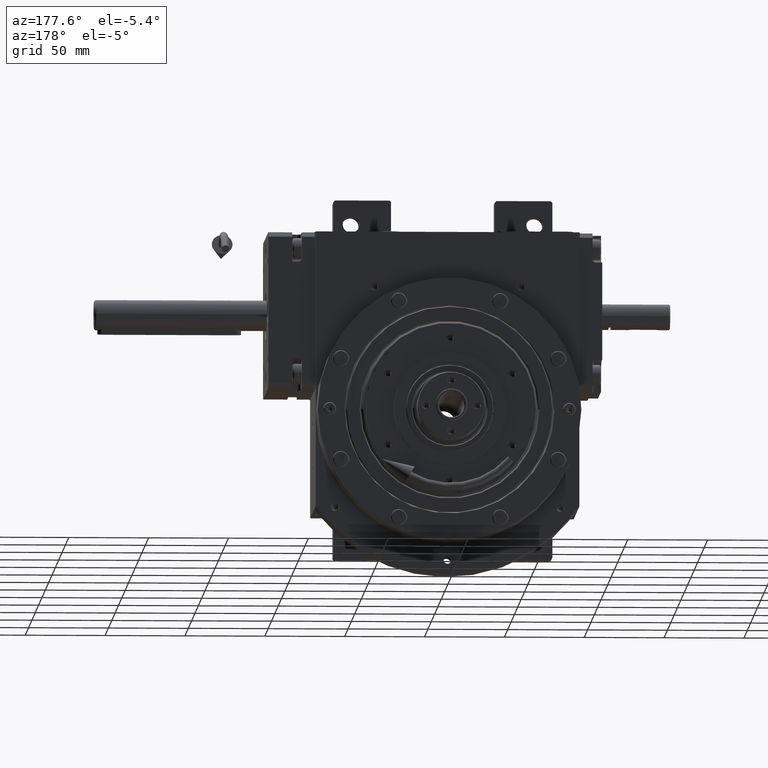
[diagram: clean part render]
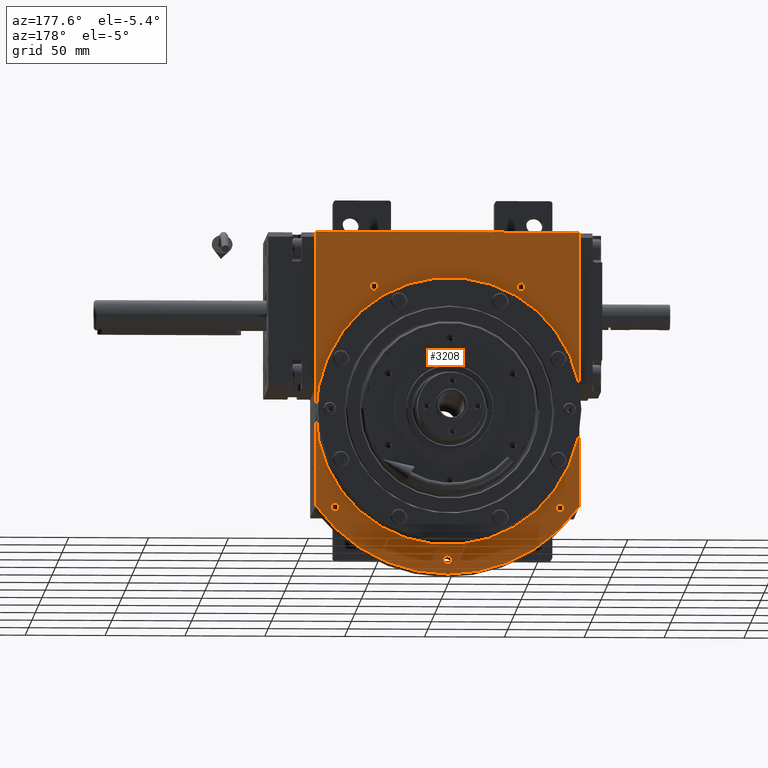
[diagram: same view with one face highlighted and labeled with its STEP entity id]
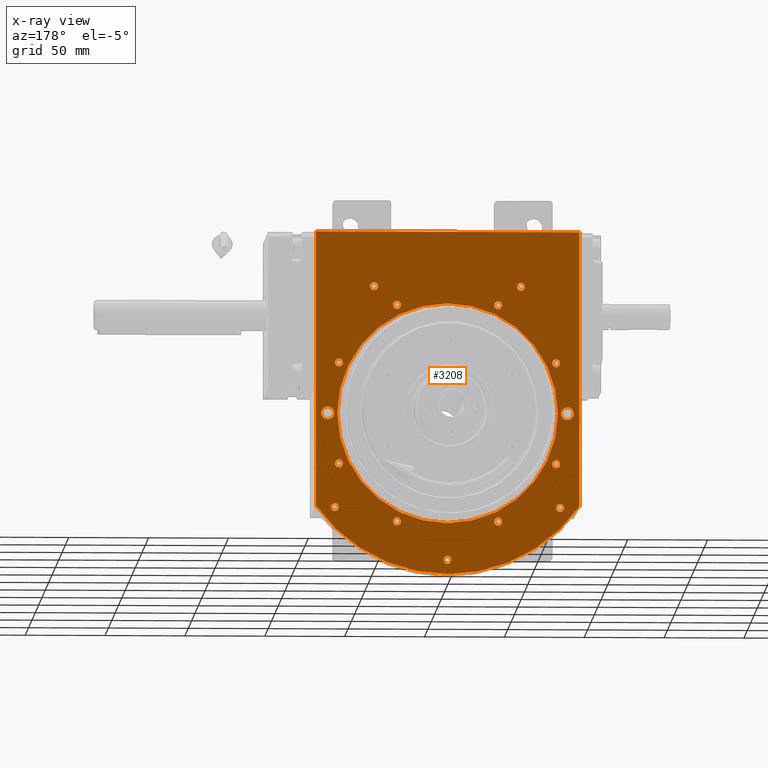
[diagram: x-ray of the same camera — body ghosted, the highlighted face saturated]
A machine part, auxiliary view. The second image highlights one B-rep face of the part: STEP entity #3208.
The next image is the same camera in x-ray: the body ghosted, the highlighted face saturated — about 0% of this face is hidden behind the body in this view.
In plain terms, the highlighted planar face has unit normal (0, 1, 0).
Its self-contained STEP definition (entity closure, byte-faithful):
#107 = LINE ( 'NONE', #52809, #14744 ) ;
#132 = CIRCLE ( 'NONE', #56200, 4.000000000000006217 ) ;
#306 = CARTESIAN_POINT ( 'NONE',  ( -70.47608876694599189, 44.50000000000000000, -59.13646009116160229 ) ) ;
#595 = FACE_BOUND ( 'NONE', #13395, .T. ) ;
#718 = DIRECTION ( 'NONE',  ( 0.000000000000000000, 1.000000000000000000, 0.000000000000000000 ) ) ;
#781 = EDGE_CURVE ( 'NONE', #11074, #19322, #132, .T. ) ;
#812 = CARTESIAN_POINT ( 'NONE',  ( 70.47608876694599189, 44.50000000000000000, -59.13646009116160229 ) ) ;
#828 = DIRECTION ( 'NONE',  ( -0.000000000000000000, -1.000000000000000000, -0.000000000000000000 ) ) ;
#893 = CIRCLE ( 'NONE', #40121, 2.500000000000000000 ) ;
#998 = CIRCLE ( 'NONE', #9964, 2.500000000000002220 ) ;
#1527 = CIRCLE ( 'NONE', #26192, 2.500000000000002220 ) ;
#1593 = DIRECTION ( 'NONE',  ( -0.000000000000000000, -1.000000000000000000, -0.000000000000000000 ) ) ;
#2049 = CIRCLE ( 'NONE', #52471, 4.000000000000006217 ) ;
#2552 = VERTEX_POINT ( 'NONE', #21928 ) ;
#2632 = EDGE_CURVE ( 'NONE', #10119, #39839, #30431, .T. ) ;
#2748 = VECTOR ( 'NONE', #33037, 1000.000000000000000 ) ;
#2776 = AXIS2_PLACEMENT_3D ( 'NONE', #12699, #44997, #55202 ) ;
#3024 = ORIENTED_EDGE ( 'NONE', *, *, #57660, .F. ) ;
#3208 = ADVANCED_FACE ( 'NONE', ( #64190, #53996, #9729, #16398, #26253, #595, #52609, #11142, #42019, #41677, #5160, #16061, #63155, #10438, #26578, #47993, #15030 ), #47331, .T. ) ;
#3346 = CIRCLE ( 'NONE', #50497, 2.500000000000002220 ) ;
#3422 = EDGE_CURVE ( 'NONE', #7065, #7287, #65132, .T. ) ;
#4454 = DIRECTION ( 'NONE',  ( 0.000000000000000000, 1.000000000000000000, 0.000000000000000000 ) ) ;
#4604 = CARTESIAN_POINT ( 'NONE',  ( 72.97608876694600610, 44.50000000000000000, -59.13646009116160229 ) ) ;
#4619 = ORIENTED_EDGE ( 'NONE', *, *, #8095, .F. ) ;
#4636 = CARTESIAN_POINT ( 'NONE',  ( 65.47308402774879710, 44.50000000000000000, -31.69636963055249979 ) ) ;
#4740 = CIRCLE ( 'NONE', #27208, 2.500000000000002220 ) ;
#4886 = AXIS2_PLACEMENT_3D ( 'NONE', #60005, #28373, #42495 ) ;
#4897 = CARTESIAN_POINT ( 'NONE',  ( -70.47308402774881131, 44.50000000000000000, 31.69636963055245360 ) ) ;
#5008 = DIRECTION ( 'NONE',  ( 1.000000000000000000, 0.000000000000000000, 0.000000000000000000 ) ) ;
#5160 = FACE_BOUND ( 'NONE', #50845, .T. ) ;
#5360 = CARTESIAN_POINT ( 'NONE',  ( 65.47308402774879710, 44.50000000000000000, 31.69636963055249979 ) ) ;
#5796 = DIRECTION ( 'NONE',  ( -1.000000000000000000, 0.000000000000000000, 0.000000000000000000 ) ) ;
#5998 = CARTESIAN_POINT ( 'NONE',  ( 70.47608876694599189, 44.50000000000000000, -59.13646009116160229 ) ) ;
#6116 = ORIENTED_EDGE ( 'NONE', *, *, #35644, .F. ) ;
#7065 = VERTEX_POINT ( 'NONE', #33998 ) ;
#7183 = EDGE_CURVE ( 'NONE', #22458, #2552, #1527, .T. ) ;
#7193 = EDGE_CURVE ( 'NONE', #17111, #33852, #11596, .T. ) ;
#7287 = VERTEX_POINT ( 'NONE', #10055 ) ;
#7387 = EDGE_CURVE ( 'NONE', #24071, #38168, #68875, .T. ) ;
#7714 = VECTOR ( 'NONE', #55056, 1000.000000000000000 ) ;
#7752 = DIRECTION ( 'NONE',  ( 0.000000000000000000, 0.000000000000000000, 1.000000000000000000 ) ) ;
#8031 = ORIENTED_EDGE ( 'NONE', *, *, #7193, .F. ) ;
#8095 = EDGE_CURVE ( 'NONE', #61151, #23638, #51049, .T. ) ;
#8286 = DIRECTION ( 'NONE',  ( 0.000000000000000000, 1.000000000000000000, 0.000000000000000000 ) ) ;
#8556 = CARTESIAN_POINT ( 'NONE',  ( -67.97308402774881131, 44.50000000000000000, -31.69636963055245360 ) ) ;
#8769 = CARTESIAN_POINT ( 'NONE',  ( -34.19636963055249623, 44.50000000000000000, -67.97308402774881131 ) ) ;
#8777 = DIRECTION ( 'NONE',  ( 0.000000000000000000, 1.000000000000000000, 0.000000000000000000 ) ) ;
#8914 = EDGE_CURVE ( 'NONE', #20723, #28476, #16687, .T. ) ;
#9296 = ORIENTED_EDGE ( 'NONE', *, *, #35007, .F. ) ;
#9483 = DIRECTION ( 'NONE',  ( -1.000000000000000000, 0.000000000000000000, -2.775557561562888984E-15 ) ) ;
#9729 = FACE_BOUND ( 'NONE', #21496, .T. ) ;
#9964 = AXIS2_PLACEMENT_3D ( 'NONE', #66421, #33034, #54461 ) ;
#10006 = CARTESIAN_POINT ( 'NONE',  ( -67.97308402774881131, 44.50000000000000000, -31.69636963055245360 ) ) ;
#10055 = CARTESIAN_POINT ( 'NONE',  ( -70.47308402774881131, 44.50000000000000000, -31.69636963055245360 ) ) ;
#10119 = VERTEX_POINT ( 'NONE', #4636 ) ;
#10413 = CARTESIAN_POINT ( 'NONE',  ( -75.00000000000000000, 44.50000000000000000, 4.000000000000006217 ) ) ;
#10438 = FACE_BOUND ( 'NONE', #62173, .T. ) ;
#10547 = CIRCLE ( 'NONE', #12852, 2.500000000000000000 ) ;
#11074 = VERTEX_POINT ( 'NONE', #10413 ) ;
#11142 = FACE_BOUND ( 'NONE', #25388, .T. ) ;
#11301 = CARTESIAN_POINT ( 'NONE',  ( -31.69636963055249979, 44.50000000000000000, -67.97308402774881131 ) ) ;
#11404 = CARTESIAN_POINT ( 'NONE',  ( 67.97308402774871183, 44.50000000000000000, -31.69636963055249979 ) ) ;
#11596 = CIRCLE ( 'NONE', #23944, 2.499999999999998668 ) ;
#11652 = ORIENTED_EDGE ( 'NONE', *, *, #55230, .F. ) ;
#12134 = DIRECTION ( 'NONE',  ( 1.000000000000000000, 0.000000000000000000, 0.000000000000000000 ) ) ;
#12264 = CIRCLE ( 'NONE', #51520, 2.500000000000002220 ) ;
#12345 = ORIENTED_EDGE ( 'NONE', *, *, #13297, .F. ) ;
#12452 = EDGE_CURVE ( 'NONE', #20446, #15559, #10547, .T. ) ;
#12699 = CARTESIAN_POINT ( 'NONE',  ( -46.00000000000000000, 44.50000000000000000, 79.67433714816840507 ) ) ;
#12852 = AXIS2_PLACEMENT_3D ( 'NONE', #36729, #33211, #27613 ) ;
#13184 = DIRECTION ( 'NONE',  ( 0.000000000000000000, 1.000000000000000000, 0.000000000000000000 ) ) ;
#13297 = EDGE_CURVE ( 'NONE', #35786, #21602, #44266, .T. ) ;
#13395 = EDGE_LOOP ( 'NONE', ( #25767, #12345 ) ) ;
#13449 = DIRECTION ( 'NONE',  ( 0.000000000000000000, 1.000000000000000000, 0.000000000000000000 ) ) ;
#13490 = AXIS2_PLACEMENT_3D ( 'NONE', #11301, #64002, #38312 ) ;
#13780 = ORIENTED_EDGE ( 'NONE', *, *, #38728, .F. ) ;
#13839 = ORIENTED_EDGE ( 'NONE', *, *, #17022, .T. ) ;
#14251 = CARTESIAN_POINT ( 'NONE',  ( -2.500000000000000000, 44.50000000000000000, -92.00000000000000000 ) ) ;
#14264 = EDGE_CURVE ( 'NONE', #66886, #48395, #30938, .T. ) ;
#14387 = CIRCLE ( 'NONE', #17735, 2.499999999999998668 ) ;
#14744 = VECTOR ( 'NONE', #47841, 1000.000000000000000 ) ;
#15030 = FACE_OUTER_BOUND ( 'NONE', #49597, .T. ) ;
#15237 = CIRCLE ( 'NONE', #19710, 101.0000000000000568 ) ;
#15321 = DIRECTION ( 'NONE',  ( -1.000000000000000000, 0.000000000000000000, 0.000000000000000000 ) ) ;
#15341 = VERTEX_POINT ( 'NONE', #61030 ) ;
#15464 = ORIENTED_EDGE ( 'NONE', *, *, #14264, .F. ) ;
#15559 = VERTEX_POINT ( 'NONE', #14251 ) ;
#15585 = ORIENTED_EDGE ( 'NONE', *, *, #8914, .F. ) ;
#15984 = VERTEX_POINT ( 'NONE', #68562 ) ;
#15986 = CARTESIAN_POINT ( 'NONE',  ( -67.97608876694600610, 44.50000000000000000, -59.13646009116160229 ) ) ;
#16061 = FACE_BOUND ( 'NONE', #51043, .T. ) ;
#16398 = FACE_BOUND ( 'NONE', #19413, .T. ) ;
#16644 = CARTESIAN_POINT ( 'NONE',  ( -48.50000000000000000, 44.50000000000000000, 79.67433714816840507 ) ) ;
#16687 = CIRCLE ( 'NONE', #67156, 2.500000000000002220 ) ;
#16827 = CIRCLE ( 'NONE', #28060, 2.500000000000002220 ) ;
#17017 = ORIENTED_EDGE ( 'NONE', *, *, #7183, .F. ) ;
#17022 = EDGE_CURVE ( 'NONE', #35827, #23552, #67725, .T. ) ;
#17071 = VERTEX_POINT ( 'NONE', #29323 ) ;
#17111 = VERTEX_POINT ( 'NONE', #38771 ) ;
#17633 = VERTEX_POINT ( 'NONE', #5360 ) ;
#17735 = AXIS2_PLACEMENT_3D ( 'NONE', #68718, #20572, #69391 ) ;
#17940 = CIRCLE ( 'NONE', #22446, 2.500000000000002220 ) ;
#17988 = ORIENTED_EDGE ( 'NONE', *, *, #39709, .F. ) ;
#17989 = DIRECTION ( 'NONE',  ( 0.000000000000000000, 0.000000000000000000, -1.000000000000000000 ) ) ;
#18022 = ORIENTED_EDGE ( 'NONE', *, *, #51965, .F. ) ;
#18184 = AXIS2_PLACEMENT_3D ( 'NONE', #50623, #45308, #24235 ) ;
#19322 = VERTEX_POINT ( 'NONE', #38957 ) ;
#19413 = EDGE_LOOP ( 'NONE', ( #52403, #20110 ) ) ;
#19593 = EDGE_CURVE ( 'NONE', #48395, #66886, #45747, .T. ) ;
#19710 = AXIS2_PLACEMENT_3D ( 'NONE', #67120, #62879, #35133 ) ;
#19845 = CARTESIAN_POINT ( 'NONE',  ( 67.97308402774881131, 44.50000000000000000, 31.69636963055249979 ) ) ;
#19962 = EDGE_CURVE ( 'NONE', #15559, #20446, #893, .T. ) ;
#19988 = AXIS2_PLACEMENT_3D ( 'NONE', #306, #60343, #33639 ) ;
#20110 = ORIENTED_EDGE ( 'NONE', *, *, #12452, .F. ) ;
#20446 = VERTEX_POINT ( 'NONE', #48241 ) ;
#20572 = DIRECTION ( 'NONE',  ( 0.000000000000000000, 1.000000000000000000, 0.000000000000000000 ) ) ;
#20723 = VERTEX_POINT ( 'NONE', #28223 ) ;
#20952 = ORIENTED_EDGE ( 'NONE', *, *, #37803, .F. ) ;
#21103 = CARTESIAN_POINT ( 'NONE',  ( 75.00000000000000000, 44.50000000000000000, 4.000000000000006217 ) ) ;
#21496 = EDGE_LOOP ( 'NONE', ( #18022, #30659 ) ) ;
#21602 = VERTEX_POINT ( 'NONE', #16644 ) ;
#21928 = CARTESIAN_POINT ( 'NONE',  ( -65.47308402774879710, 44.50000000000000000, 31.69636963055245360 ) ) ;
#22125 = DIRECTION ( 'NONE',  ( -1.000000000000000000, 0.000000000000000000, 0.000000000000000000 ) ) ;
#22271 = DIRECTION ( 'NONE',  ( 0.000000000000000000, 1.000000000000000000, 0.000000000000000000 ) ) ;
#22446 = AXIS2_PLACEMENT_3D ( 'NONE', #11404, #22271, #48622 ) ;
#22458 = VERTEX_POINT ( 'NONE', #4897 ) ;
#22488 = CARTESIAN_POINT ( 'NONE',  ( -82.50000000000000000, 44.50000000000000000, -58.26448317800490173 ) ) ;
#23253 = ORIENTED_EDGE ( 'NONE', *, *, #36946, .F. ) ;
#23552 = VERTEX_POINT ( 'NONE', #25314 ) ;
#23638 = VERTEX_POINT ( 'NONE', #37214 ) ;
#23944 = AXIS2_PLACEMENT_3D ( 'NONE', #45547, #62776, #52226 ) ;
#24071 = VERTEX_POINT ( 'NONE', #40660 ) ;
#24235 = DIRECTION ( 'NONE',  ( -1.000000000000000000, 0.000000000000000000, 0.000000000000000000 ) ) ;
#24703 = EDGE_CURVE ( 'NONE', #23638, #61151, #14387, .T. ) ;
#24937 = DIRECTION ( 'NONE',  ( 0.000000000000000000, 1.000000000000000000, 0.000000000000000000 ) ) ;
#25194 = DIRECTION ( 'NONE',  ( 0.000000000000000000, 1.000000000000000000, 0.000000000000000000 ) ) ;
#25314 = CARTESIAN_POINT ( 'NONE',  ( 0.000000000000000000, 44.50000000000000000, 69.00000000000000000 ) ) ;
#25388 = EDGE_LOOP ( 'NONE', ( #50423, #15464 ) ) ;
#25653 = EDGE_CURVE ( 'NONE', #19322, #11074, #32442, .T. ) ;
#25729 = CARTESIAN_POINT ( 'NONE',  ( -75.00000000000000000, 44.50000000000000000, 0.000000000000000000 ) ) ;
#25767 = ORIENTED_EDGE ( 'NONE', *, *, #31962, .F. ) ;
#25775 = DIRECTION ( 'NONE',  ( -1.000000000000000000, 0.000000000000000000, -2.775557561562888984E-15 ) ) ;
#25984 = EDGE_CURVE ( 'NONE', #57145, #17633, #38093, .T. ) ;
#26192 = AXIS2_PLACEMENT_3D ( 'NONE', #67013, #25194, #68054 ) ;
#26253 = FACE_BOUND ( 'NONE', #28122, .T. ) ;
#26578 = FACE_BOUND ( 'NONE', #48592, .T. ) ;
#26830 = ORIENTED_EDGE ( 'NONE', *, *, #7387, .F. ) ;
#27208 = AXIS2_PLACEMENT_3D ( 'NONE', #49736, #13184, #12134 ) ;
#27569 = DIRECTION ( 'NONE',  ( 0.000000000000000000, 1.000000000000000000, 0.000000000000000000 ) ) ;
#27613 = DIRECTION ( 'NONE',  ( 1.000000000000000000, 0.000000000000000000, 0.000000000000000000 ) ) ;
#27849 = DIRECTION ( 'NONE',  ( 0.000000000000000000, 1.000000000000000000, 0.000000000000000000 ) ) ;
#27941 = CARTESIAN_POINT ( 'NONE',  ( 2.220446049250315053E-16, 44.50000000000000000, -92.00000000000000000 ) ) ;
#27950 = EDGE_CURVE ( 'NONE', #66945, #37544, #107, .T. ) ;
#28060 = AXIS2_PLACEMENT_3D ( 'NONE', #8556, #35953, #25775 ) ;
#28119 = AXIS2_PLACEMENT_3D ( 'NONE', #67174, #62938, #35184 ) ;
#28122 = EDGE_LOOP ( 'NONE', ( #54855, #60928 ) ) ;
#28198 = CARTESIAN_POINT ( 'NONE',  ( -82.50000000000000000, 44.50000000000000000, -58.26448317800490173 ) ) ;
#28223 = CARTESIAN_POINT ( 'NONE',  ( 67.97608876694600610, 44.50000000000000000, -59.13646009116160229 ) ) ;
#28286 = DIRECTION ( 'NONE',  ( 0.000000000000000000, 0.000000000000000000, 1.000000000000000000 ) ) ;
#28373 = DIRECTION ( 'NONE',  ( 0.000000000000000000, 1.000000000000000000, 0.000000000000000000 ) ) ;
#28476 = VERTEX_POINT ( 'NONE', #4604 ) ;
#28924 = DIRECTION ( 'NONE',  ( 0.000000000000000000, 1.000000000000000000, 0.000000000000000000 ) ) ;
#28950 = EDGE_LOOP ( 'NONE', ( #11652, #38060 ) ) ;
#29263 = CARTESIAN_POINT ( 'NONE',  ( 70.47308402774881131, 44.50000000000000000, 31.69636963055249979 ) ) ;
#29323 = CARTESIAN_POINT ( 'NONE',  ( 43.50000000000000000, 44.50000000000000000, 79.67433714816840507 ) ) ;
#29778 = AXIS2_PLACEMENT_3D ( 'NONE', #30666, #31353, #5008 ) ;
#30173 = CARTESIAN_POINT ( 'NONE',  ( 75.00000000000000000, 44.50000000000000000, -4.000000000000006217 ) ) ;
#30431 = CIRCLE ( 'NONE', #50491, 2.500000000000002220 ) ;
#30659 = ORIENTED_EDGE ( 'NONE', *, *, #35408, .F. ) ;
#30666 = CARTESIAN_POINT ( 'NONE',  ( -70.47608876694599189, 44.50000000000000000, -59.13646009116160229 ) ) ;
#30938 = CIRCLE ( 'NONE', #29778, 2.500000000000002220 ) ;
#31101 = CARTESIAN_POINT ( 'NONE',  ( 8.450062914116737844E-15, 44.50000000000000000, -69.00000000000000000 ) ) ;
#31353 = DIRECTION ( 'NONE',  ( 0.000000000000000000, 1.000000000000000000, 0.000000000000000000 ) ) ;
#31433 = DIRECTION ( 'NONE',  ( 0.000000000000000000, 1.000000000000000000, 0.000000000000000000 ) ) ;
#31962 = EDGE_CURVE ( 'NONE', #21602, #35786, #52592, .T. ) ;
#32126 = ORIENTED_EDGE ( 'NONE', *, *, #3422, .F. ) ;
#32442 = CIRCLE ( 'NONE', #36881, 4.000000000000006217 ) ;
#33034 = DIRECTION ( 'NONE',  ( 0.000000000000000000, 1.000000000000000000, 0.000000000000000000 ) ) ;
#33037 = DIRECTION ( 'NONE',  ( 0.000000000000000000, 0.000000000000000000, 1.000000000000000000 ) ) ;
#33211 = DIRECTION ( 'NONE',  ( 0.000000000000000000, 1.000000000000000000, 0.000000000000000000 ) ) ;
#33299 = EDGE_CURVE ( 'NONE', #37544, #45174, #44474, .T. ) ;
#33328 = EDGE_LOOP ( 'NONE', ( #8031, #67303 ) ) ;
#33639 = DIRECTION ( 'NONE',  ( -1.000000000000000000, 0.000000000000000000, 0.000000000000000000 ) ) ;
#33852 = VERTEX_POINT ( 'NONE', #45036 ) ;
#33998 = CARTESIAN_POINT ( 'NONE',  ( -65.47308402774879710, 44.50000000000000000, -31.69636963055245360 ) ) ;
#34874 = DIRECTION ( 'NONE',  ( 1.000000000000000000, 0.000000000000000000, -5.551115123125777969E-15 ) ) ;
#35007 = EDGE_CURVE ( 'NONE', #7287, #7065, #16827, .T. ) ;
#35133 = DIRECTION ( 'NONE',  ( 0.8168316831683155588, 0.000000000000000000, -0.5768760710693557892 ) ) ;
#35184 = DIRECTION ( 'NONE',  ( 0.000000000000000000, 0.000000000000000000, -1.000000000000000000 ) ) ;
#35216 = DIRECTION ( 'NONE',  ( 0.000000000000000000, 1.000000000000000000, 0.000000000000000000 ) ) ;
#35408 = EDGE_CURVE ( 'NONE', #37167, #38241, #40422, .T. ) ;
#35644 = EDGE_CURVE ( 'NONE', #38168, #24071, #40466, .T. ) ;
#35786 = VERTEX_POINT ( 'NONE', #67352 ) ;
#35827 = VERTEX_POINT ( 'NONE', #31101 ) ;
#35953 = DIRECTION ( 'NONE',  ( 0.000000000000000000, 1.000000000000000000, 0.000000000000000000 ) ) ;
#36425 = DIRECTION ( 'NONE',  ( 1.000000000000000000, 0.000000000000000000, 0.000000000000000000 ) ) ;
#36729 = CARTESIAN_POINT ( 'NONE',  ( 0.000000000000000000, 44.50000000000000000, -92.00000000000000000 ) ) ;
#36749 = CARTESIAN_POINT ( 'NONE',  ( -75.00000000000000000, 44.50000000000000000, 0.000000000000000000 ) ) ;
#36881 = AXIS2_PLACEMENT_3D ( 'NONE', #36749, #64192, #58225 ) ;
#36927 = AXIS2_PLACEMENT_3D ( 'NONE', #19845, #8286, #40223 ) ;
#36946 = EDGE_CURVE ( 'NONE', #2552, #22458, #998, .T. ) ;
#37167 = VERTEX_POINT ( 'NONE', #30173 ) ;
#37214 = CARTESIAN_POINT ( 'NONE',  ( 29.19636963055245005, 44.50000000000000000, -67.97308402774881131 ) ) ;
#37383 = AXIS2_PLACEMENT_3D ( 'NONE', #56363, #1593, #28286 ) ;
#37544 = VERTEX_POINT ( 'NONE', #47213 ) ;
#37803 = EDGE_CURVE ( 'NONE', #28476, #20723, #47074, .T. ) ;
#38060 = ORIENTED_EDGE ( 'NONE', *, *, #25984, .F. ) ;
#38093 = CIRCLE ( 'NONE', #36927, 2.500000000000002220 ) ;
#38168 = VERTEX_POINT ( 'NONE', #59767 ) ;
#38241 = VERTEX_POINT ( 'NONE', #21103 ) ;
#38312 = DIRECTION ( 'NONE',  ( 1.000000000000000000, 0.000000000000000000, -5.551115123125785858E-15 ) ) ;
#38728 = EDGE_CURVE ( 'NONE', #15341, #47418, #43747, .T. ) ;
#38771 = CARTESIAN_POINT ( 'NONE',  ( 29.19636963055250334, 44.50000000000000000, 67.97308402774871183 ) ) ;
#38957 = CARTESIAN_POINT ( 'NONE',  ( -75.00000000000000000, 44.50000000000000000, -4.000000000000006217 ) ) ;
#38959 = AXIS2_PLACEMENT_3D ( 'NONE', #47920, #27569, #5796 ) ;
#39709 = EDGE_CURVE ( 'NONE', #39839, #10119, #17940, .T. ) ;
#39772 = EDGE_CURVE ( 'NONE', #17071, #15984, #3346, .T. ) ;
#39785 = EDGE_LOOP ( 'NONE', ( #15585, #20952 ) ) ;
#39839 = VERTEX_POINT ( 'NONE', #61606 ) ;
#40121 = AXIS2_PLACEMENT_3D ( 'NONE', #27941, #54989, #65205 ) ;
#40180 = ORIENTED_EDGE ( 'NONE', *, *, #33299, .T. ) ;
#40223 = DIRECTION ( 'NONE',  ( 1.000000000000000000, 0.000000000000000000, 0.000000000000000000 ) ) ;
#40422 = CIRCLE ( 'NONE', #28119, 4.000000000000006217 ) ;
#40466 = CIRCLE ( 'NONE', #67465, 2.499999999999998668 ) ;
#40660 = CARTESIAN_POINT ( 'NONE',  ( -34.19636963055244649, 44.50000000000000000, 67.97308402774881131 ) ) ;
#40806 = CARTESIAN_POINT ( 'NONE',  ( 31.69636963055245360, 44.50000000000000000, -67.97308402774871183 ) ) ;
#41378 = CARTESIAN_POINT ( 'NONE',  ( 67.97308402774881131, 44.50000000000000000, 31.69636963055249979 ) ) ;
#41419 = AXIS2_PLACEMENT_3D ( 'NONE', #812, #27849, #53172 ) ;
#41677 = FACE_BOUND ( 'NONE', #28950, .T. ) ;
#42019 = FACE_BOUND ( 'NONE', #33328, .T. ) ;
#42495 = DIRECTION ( 'NONE',  ( 1.000000000000000000, 0.000000000000000000, -5.551115123125777969E-15 ) ) ;
#43203 = ORIENTED_EDGE ( 'NONE', *, *, #25653, .F. ) ;
#43497 = EDGE_CURVE ( 'NONE', #33852, #17111, #47515, .T. ) ;
#43735 = AXIS2_PLACEMENT_3D ( 'NONE', #63483, #47666, #36425 ) ;
#43747 = CIRCLE ( 'NONE', #13490, 2.499999999999998668 ) ;
#44266 = CIRCLE ( 'NONE', #2776, 2.500000000000002220 ) ;
#44474 = LINE ( 'NONE', #59994, #7714 ) ;
#44720 = EDGE_CURVE ( 'NONE', #62559, #66945, #59050, .T. ) ;
#44840 = DIRECTION ( 'NONE',  ( 1.000000000000000000, 0.000000000000000000, 0.000000000000000000 ) ) ;
#44997 = DIRECTION ( 'NONE',  ( 0.000000000000000000, 1.000000000000000000, 0.000000000000000000 ) ) ;
#44998 = ORIENTED_EDGE ( 'NONE', *, *, #781, .F. ) ;
#45036 = CARTESIAN_POINT ( 'NONE',  ( 34.19636963055249623, 44.50000000000000000, 67.97308402774871183 ) ) ;
#45097 = CARTESIAN_POINT ( 'NONE',  ( -82.50000000000000000, 44.50000000000000000, 114.0000000000000000 ) ) ;
#45174 = VERTEX_POINT ( 'NONE', #47030 ) ;
#45246 = ORIENTED_EDGE ( 'NONE', *, *, #24703, .F. ) ;
#45308 = DIRECTION ( 'NONE',  ( 0.000000000000000000, 1.000000000000000000, 0.000000000000000000 ) ) ;
#45547 = CARTESIAN_POINT ( 'NONE',  ( 31.69636963055249979, 44.50000000000000000, 67.97308402774871183 ) ) ;
#45747 = CIRCLE ( 'NONE', #19988, 2.500000000000002220 ) ;
#46108 = ORIENTED_EDGE ( 'NONE', *, *, #44720, .T. ) ;
#46118 = DIRECTION ( 'NONE',  ( -1.000000000000000000, 0.000000000000000000, 0.000000000000000000 ) ) ;
#46795 = ORIENTED_EDGE ( 'NONE', *, *, #64426, .T. ) ;
#47030 = CARTESIAN_POINT ( 'NONE',  ( 82.50000000000000000, 44.50000000000000000, -58.26448317800490173 ) ) ;
#47074 = CIRCLE ( 'NONE', #41419, 2.500000000000002220 ) ;
#47213 = CARTESIAN_POINT ( 'NONE',  ( 82.50000000000000000, 44.50000000000000000, 114.0000000000000000 ) ) ;
#47331 = PLANE ( 'NONE',  #43735 ) ;
#47394 = AXIS2_PLACEMENT_3D ( 'NONE', #56238, #828, #7752 ) ;
#47418 = VERTEX_POINT ( 'NONE', #8769 ) ;
#47515 = CIRCLE ( 'NONE', #4886, 2.500000000000002220 ) ;
#47666 = DIRECTION ( 'NONE',  ( -0.000000000000000000, 1.000000000000000000, 0.000000000000000000 ) ) ;
#47841 = DIRECTION ( 'NONE',  ( 1.000000000000000000, 0.000000000000000000, 0.000000000000000000 ) ) ;
#47920 = CARTESIAN_POINT ( 'NONE',  ( -46.00000000000000000, 44.50000000000000000, 79.67433714816840507 ) ) ;
#47993 = FACE_BOUND ( 'NONE', #52183, .T. ) ;
#48196 = CARTESIAN_POINT ( 'NONE',  ( 34.19636963055244649, 44.50000000000000000, -67.97308402774881131 ) ) ;
#48241 = CARTESIAN_POINT ( 'NONE',  ( 2.500000000000000000, 44.50000000000000000, -92.00000000000000000 ) ) ;
#48246 = ORIENTED_EDGE ( 'NONE', *, *, #58919, .T. ) ;
#48395 = VERTEX_POINT ( 'NONE', #52510 ) ;
#48592 = EDGE_LOOP ( 'NONE', ( #17017, #23253 ) ) ;
#48622 = DIRECTION ( 'NONE',  ( 1.000000000000000000, 0.000000000000000000, 2.775557561562888984E-15 ) ) ;
#49359 = AXIS2_PLACEMENT_3D ( 'NONE', #40806, #13449, #34874 ) ;
#49565 = CIRCLE ( 'NONE', #18184, 2.500000000000002220 ) ;
#49597 = EDGE_LOOP ( 'NONE', ( #46795, #46108, #69188, #40180 ) ) ;
#49736 = CARTESIAN_POINT ( 'NONE',  ( 46.00000000000000000, 44.50000000000000000, 79.67433714816840507 ) ) ;
#49950 = DIRECTION ( 'NONE',  ( 0.000000000000000000, 1.000000000000000000, -0.000000000000000000 ) ) ;
#50053 = ORIENTED_EDGE ( 'NONE', *, *, #2632, .F. ) ;
#50423 = ORIENTED_EDGE ( 'NONE', *, *, #19593, .F. ) ;
#50491 = AXIS2_PLACEMENT_3D ( 'NONE', #67846, #8777, #9483 ) ;
#50497 = AXIS2_PLACEMENT_3D ( 'NONE', #60925, #28924, #46118 ) ;
#50623 = CARTESIAN_POINT ( 'NONE',  ( -31.69636963055249979, 44.50000000000000000, -67.97308402774881131 ) ) ;
#50845 = EDGE_LOOP ( 'NONE', ( #50053, #17988 ) ) ;
#51043 = EDGE_LOOP ( 'NONE', ( #45246, #4619 ) ) ;
#51049 = CIRCLE ( 'NONE', #49359, 2.500000000000002220 ) ;
#51520 = AXIS2_PLACEMENT_3D ( 'NONE', #41378, #24937, #52305 ) ;
#51683 = AXIS2_PLACEMENT_3D ( 'NONE', #10006, #31433, #52876 ) ;
#51965 = EDGE_CURVE ( 'NONE', #38241, #37167, #2049, .T. ) ;
#52183 = EDGE_LOOP ( 'NONE', ( #26830, #6116 ) ) ;
#52226 = DIRECTION ( 'NONE',  ( -1.000000000000000000, 0.000000000000000000, 0.000000000000000000 ) ) ;
#52305 = DIRECTION ( 'NONE',  ( -1.000000000000000000, 0.000000000000000000, 0.000000000000000000 ) ) ;
#52403 = ORIENTED_EDGE ( 'NONE', *, *, #19962, .F. ) ;
#52471 = AXIS2_PLACEMENT_3D ( 'NONE', #55570, #49950, #17989 ) ;
#52510 = CARTESIAN_POINT ( 'NONE',  ( -72.97608876694600610, 44.50000000000000000, -59.13646009116160229 ) ) ;
#52592 = CIRCLE ( 'NONE', #38959, 2.500000000000002220 ) ;
#52609 = FACE_BOUND ( 'NONE', #39785, .T. ) ;
#52809 = CARTESIAN_POINT ( 'NONE',  ( -82.50000000000000000, 44.50000000000000000, 114.0000000000000000 ) ) ;
#52876 = DIRECTION ( 'NONE',  ( 1.000000000000000000, 0.000000000000000000, 2.775557561562888984E-15 ) ) ;
#53172 = DIRECTION ( 'NONE',  ( 1.000000000000000000, 0.000000000000000000, 0.000000000000000000 ) ) ;
#53996 = FACE_BOUND ( 'NONE', #63325, .T. ) ;
#54461 = DIRECTION ( 'NONE',  ( 1.000000000000000000, 0.000000000000000000, 2.775557561562888984E-15 ) ) ;
#54855 = ORIENTED_EDGE ( 'NONE', *, *, #39772, .F. ) ;
#54989 = DIRECTION ( 'NONE',  ( 0.000000000000000000, 1.000000000000000000, 0.000000000000000000 ) ) ;
#55056 = DIRECTION ( 'NONE',  ( -3.299775891822714988E-16, 0.000000000000000000, -1.000000000000000000 ) ) ;
#55066 = CARTESIAN_POINT ( 'NONE',  ( -31.69636963055245360, 44.50000000000000000, 67.97308402774881131 ) ) ;
#55202 = DIRECTION ( 'NONE',  ( 1.000000000000000000, 0.000000000000000000, 0.000000000000000000 ) ) ;
#55230 = EDGE_CURVE ( 'NONE', #17633, #57145, #12264, .T. ) ;
#55570 = CARTESIAN_POINT ( 'NONE',  ( 75.00000000000000000, 44.50000000000000000, 0.000000000000000000 ) ) ;
#56200 = AXIS2_PLACEMENT_3D ( 'NONE', #25729, #35216, #56985 ) ;
#56238 = CARTESIAN_POINT ( 'NONE',  ( 0.000000000000000000, 44.50000000000000000, 0.000000000000000000 ) ) ;
#56363 = CARTESIAN_POINT ( 'NONE',  ( 0.000000000000000000, 44.50000000000000000, 0.000000000000000000 ) ) ;
#56661 = EDGE_LOOP ( 'NONE', ( #48246, #13839 ) ) ;
#56985 = DIRECTION ( 'NONE',  ( 0.000000000000000000, 0.000000000000000000, 1.000000000000000000 ) ) ;
#57145 = VERTEX_POINT ( 'NONE', #29263 ) ;
#57660 = EDGE_CURVE ( 'NONE', #47418, #15341, #49565, .T. ) ;
#57848 = CARTESIAN_POINT ( 'NONE',  ( -31.69636963055245360, 44.50000000000000000, 67.97308402774881131 ) ) ;
#57935 = EDGE_LOOP ( 'NONE', ( #3024, #13780 ) ) ;
#58225 = DIRECTION ( 'NONE',  ( 0.000000000000000000, 0.000000000000000000, 1.000000000000000000 ) ) ;
#58536 = EDGE_CURVE ( 'NONE', #15984, #17071, #4740, .T. ) ;
#58919 = EDGE_CURVE ( 'NONE', #23552, #35827, #67648, .T. ) ;
#59050 = LINE ( 'NONE', #22488, #2748 ) ;
#59767 = CARTESIAN_POINT ( 'NONE',  ( -29.19636963055245005, 44.50000000000000000, 67.97308402774881131 ) ) ;
#59994 = CARTESIAN_POINT ( 'NONE',  ( 82.50000000000000000, 44.50000000000000000, 114.0000000000000000 ) ) ;
#60005 = CARTESIAN_POINT ( 'NONE',  ( 31.69636963055249979, 44.50000000000000000, 67.97308402774871183 ) ) ;
#60343 = DIRECTION ( 'NONE',  ( 0.000000000000000000, 1.000000000000000000, 0.000000000000000000 ) ) ;
#60925 = CARTESIAN_POINT ( 'NONE',  ( 46.00000000000000000, 44.50000000000000000, 79.67433714816840507 ) ) ;
#60928 = ORIENTED_EDGE ( 'NONE', *, *, #58536, .F. ) ;
#61030 = CARTESIAN_POINT ( 'NONE',  ( -29.19636963055245005, 44.50000000000000000, -67.97308402774881131 ) ) ;
#61151 = VERTEX_POINT ( 'NONE', #48196 ) ;
#61606 = CARTESIAN_POINT ( 'NONE',  ( 70.47308402774881131, 44.50000000000000000, -31.69636963055249979 ) ) ;
#62078 = DIRECTION ( 'NONE',  ( 0.000000000000000000, 1.000000000000000000, 0.000000000000000000 ) ) ;
#62173 = EDGE_LOOP ( 'NONE', ( #9296, #32126 ) ) ;
#62559 = VERTEX_POINT ( 'NONE', #28198 ) ;
#62776 = DIRECTION ( 'NONE',  ( 0.000000000000000000, 1.000000000000000000, 0.000000000000000000 ) ) ;
#62879 = DIRECTION ( 'NONE',  ( 0.000000000000000000, 1.000000000000000000, 0.000000000000000000 ) ) ;
#62938 = DIRECTION ( 'NONE',  ( 0.000000000000000000, 1.000000000000000000, -0.000000000000000000 ) ) ;
#63155 = FACE_BOUND ( 'NONE', #57935, .T. ) ;
#63325 = EDGE_LOOP ( 'NONE', ( #44998, #43203 ) ) ;
#63483 = CARTESIAN_POINT ( 'NONE',  ( 0.000000000000000000, 44.50000000000000000, 0.000000000000000000 ) ) ;
#64002 = DIRECTION ( 'NONE',  ( 0.000000000000000000, 1.000000000000000000, 0.000000000000000000 ) ) ;
#64190 = FACE_BOUND ( 'NONE', #56661, .T. ) ;
#64192 = DIRECTION ( 'NONE',  ( 0.000000000000000000, 1.000000000000000000, 0.000000000000000000 ) ) ;
#64426 = EDGE_CURVE ( 'NONE', #45174, #62559, #15237, .T. ) ;
#65132 = CIRCLE ( 'NONE', #51683, 2.500000000000002220 ) ;
#65205 = DIRECTION ( 'NONE',  ( -1.000000000000000000, 0.000000000000000000, 0.000000000000000000 ) ) ;
#65509 = AXIS2_PLACEMENT_3D ( 'NONE', #57848, #4454, #15321 ) ;
#66421 = CARTESIAN_POINT ( 'NONE',  ( -67.97308402774881131, 44.50000000000000000, 31.69636963055245360 ) ) ;
#66886 = VERTEX_POINT ( 'NONE', #15986 ) ;
#66945 = VERTEX_POINT ( 'NONE', #45097 ) ;
#67013 = CARTESIAN_POINT ( 'NONE',  ( -67.97308402774871183, 44.50000000000000000, 31.69636963055245360 ) ) ;
#67120 = CARTESIAN_POINT ( 'NONE',  ( 7.105427357600998703E-15, 44.50000000000000000, -2.842170943040399481E-14 ) ) ;
#67156 = AXIS2_PLACEMENT_3D ( 'NONE', #5998, #718, #22125 ) ;
#67174 = CARTESIAN_POINT ( 'NONE',  ( 75.00000000000000000, 44.50000000000000000, 0.000000000000000000 ) ) ;
#67303 = ORIENTED_EDGE ( 'NONE', *, *, #43497, .F. ) ;
#67352 = CARTESIAN_POINT ( 'NONE',  ( -43.50000000000000000, 44.50000000000000000, 79.67433714816840507 ) ) ;
#67465 = AXIS2_PLACEMENT_3D ( 'NONE', #55066, #62078, #44840 ) ;
#67648 = CIRCLE ( 'NONE', #47394, 69.00000000000000000 ) ;
#67725 = CIRCLE ( 'NONE', #37383, 69.00000000000000000 ) ;
#67846 = CARTESIAN_POINT ( 'NONE',  ( 67.97308402774881131, 44.50000000000000000, -31.69636963055249979 ) ) ;
#68054 = DIRECTION ( 'NONE',  ( -1.000000000000000000, 0.000000000000000000, 0.000000000000000000 ) ) ;
#68562 = CARTESIAN_POINT ( 'NONE',  ( 48.50000000000000000, 44.50000000000000000, 79.67433714816840507 ) ) ;
#68718 = CARTESIAN_POINT ( 'NONE',  ( 31.69636963055245360, 44.50000000000000000, -67.97308402774881131 ) ) ;
#68875 = CIRCLE ( 'NONE', #65509, 2.500000000000002220 ) ;
#69188 = ORIENTED_EDGE ( 'NONE', *, *, #27950, .T. ) ;
#69391 = DIRECTION ( 'NONE',  ( -1.000000000000000000, 0.000000000000000000, 0.000000000000000000 ) ) ;